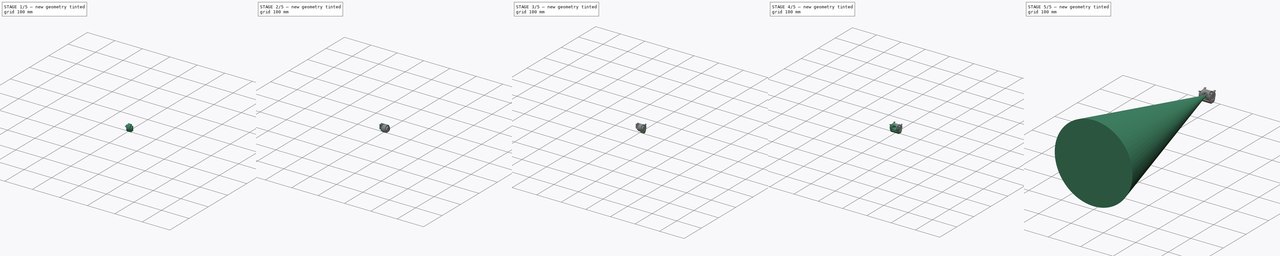
[diagram: build sequence overview — one tinted view per stage of 5, left to right]
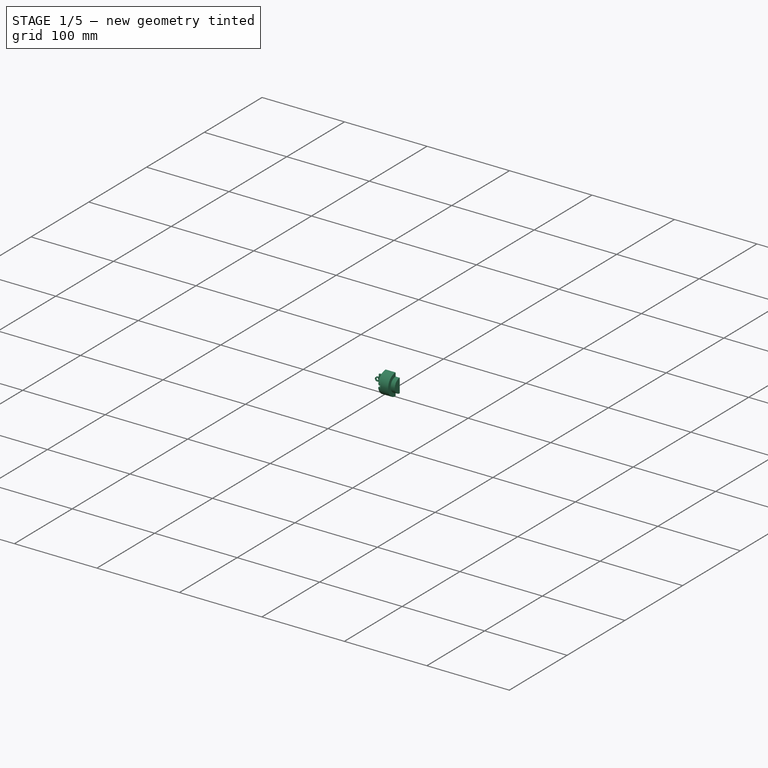
[diagram: stage 1 of 5 — iso view after this stage's code; geometry added in this stage tinted green]
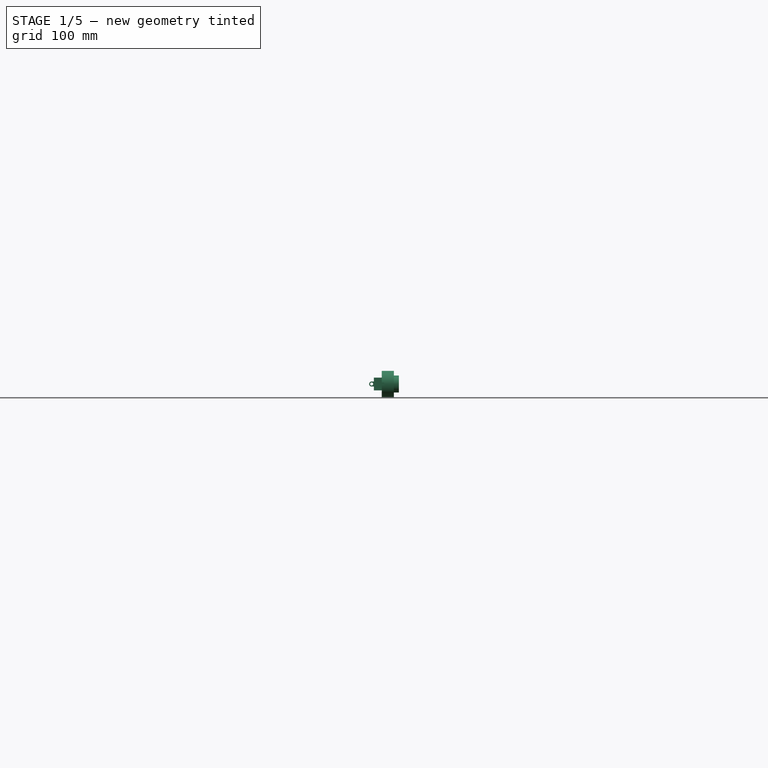
[diagram: stage 1 of 5 — front view after this stage's code; geometry added in this stage tinted green]
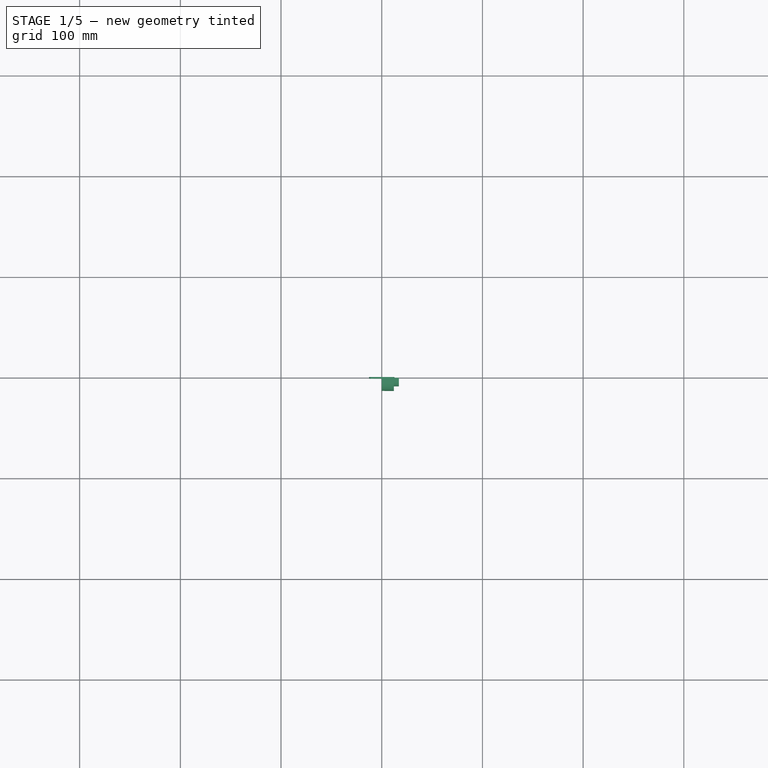
[diagram: stage 1 of 5 — top view after this stage's code; geometry added in this stage tinted green]
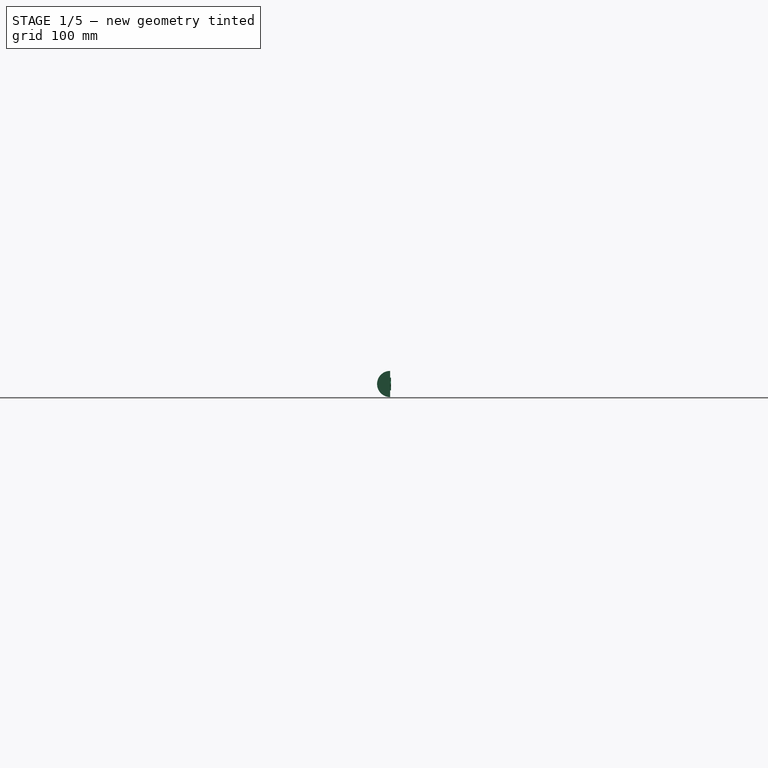
[diagram: stage 1 of 5 — right view after this stage's code; geometry added in this stage tinted green]
FCSTD DOCUMENT  (FreeCAD 1.1R20260414 (Git shallow))
Label: VL53L1XV2
License: All rights reserved
LicenseURL: http://en.wikipedia.org/wiki/All_rights_reserved
objects: Sketcher::SketchObject×23, PartDesign::Pocket×11, App::Point×10, PartDesign::Mirrored×9, PartDesign::Pad×7, PartDesign::Body×6, PartDesign::MultiTransform×6, App::Part×4, PartDesign::Fillet×3, PartDesign::Revolution×2, App::Link×2, Part::Part2DObjectPython×2, Part::Extrusion×2, PartDesign::PolarPattern×2, Part::Feature×1, App::VarSet×1, PartDesign::Groove×1, Part::RuledSurface×1
note: 164 computed .brp shape members not serialized (recipe doc carries the construction recipe); baked Part::Feature solids carry a one-line shape summary decoded from their .brp

FEATURE [PartDesign::Body] Body  label="FoV"
  AllowCompound = false
  Group = -> [Sketch,Revolution]
  Origin = -> Origin001
  Placement = pos=(0,-2.2,-2) rot=(0,0,1;0rad)
  Tip = -> Revolution
FEATURE [App::Part] Part001  label="support_VL53L1XV2"
  Origin = -> Origin002
FEATURE [App::Link] Link  label="VL53L1XV003"
  LinkPlacement = pos=(2e-16,0,-2) rot=(0,1,0;3.14159rad)
  LinkedObject = -> Part
  Placement = pos=(2e-16,0,-2) rot=(0,1,0;3.14159rad)
FEATURE [App::Point] Origin003  label="Origine"
  Role = Origin
FEATURE [App::Point] Origin004  label="Origine"
  Role = Origin
FEATURE [App::Point] Origin005  label="Origine"
  Role = Origin
FEATURE [Part::Part2DObjectPython] Line  # Draft 2D object (typed FeaturePython)
  Area = 0
  ChamferSize = 0
  Closed = false
  End = (-31,-3.82,-18)
  FilletRadius = 0
  Length = 63
  MakeFace = true
  Placement = pos=(30.6949,-3.33905,3e-15) rot=(0.707107,0.707107,0;3.14159rad)
  Points = (2) [(-0.480949,1.30514,18),(-0.480949,-61.6949,18)]
  Start = (32,-3.82,-18)
  Subdivisions = 0
FEATURE [Part::Extrusion] Extrude
  Base = -> Line
  Dir = (0,0,1)
  DirMode = 0
  FaceMakerClass = Part::FaceMakerBullseye
  FaceMakerMode = 3
  InnerWireTaper = 1
  LengthFwd = 40
  LengthRev = 0
  Solid = false
  Symmetric = false
FEATURE [App::Link] Link002  label="anneau001"
  LinkPlacement = pos=(-12,7.62876e-07,0) rot=(0,0,1;3.14159rad)
  LinkedObject = -> Body006
  Placement = pos=(-12,7.62876e-07,0) rot=(0,0,1;3.14159rad)
  expr: .Placement.Base.x = -(VarSet.largeur_base / 2 - 5 mm)
FEATURE [PartDesign::Mirrored] Mirrored
  MirrorPlane = -> YZ_Plane007
  Placement = pos=(0,0,0) rot=(1,1,1;2.0944rad)
  Suppressed = false
  TransformMode = 0
FEATURE [PartDesign::Mirrored] Mirrored003
  MirrorPlane = -> YZ_Plane011
  Placement = pos=(0,0,0) rot=(1,1,1;2.0944rad)
  Suppressed = false
  TransformMode = 0
FEATURE [PartDesign::Mirrored] Mirrored004
  MirrorPlane = -> YZ_Plane007
  Placement = pos=(0,0,0) rot=(1,1,1;2.0944rad)
  Suppressed = false
  TransformMode = 0
FEATURE [PartDesign::Mirrored] Mirrored005
  MirrorPlane = -> YZ_Plane009
  Placement = pos=(0,0,0) rot=(1,0,0;1.5708rad)
  Suppressed = false
  TransformMode = 0
FEATURE [App::Point] Origin020  label="Origine005"
  Role = Origin
FEATURE [App::Point] Origin021  label="Origine006"
  Role = Origin
FEATURE [App::Point] Origin022  label="Origine007"
  Role = Origin
FEATURE [App::Point] Origin023  label="Origine008"
  Role = Origin
FEATURE [App::Point] Origin024  label="Origine009"
  Role = Origin
FEATURE [App::Point] Origin025  label="Origine010"
  Role = Origin
FEATURE [PartDesign::PolarPattern] PolarPattern
  Angle = 180
  Axis = -> X_Axis007
  Mode = 0
  Occurrences = 13
  Offset = 120
  Placement = pos=(0,0,0) rot=(1,1,1;2.0944rad)
  SpacingPattern = [0]
  Spacings = [-1,-1,-1,-1,-1,-1,-1,-1,-1,-1,-1,-1]
  Suppressed = false
  TransformMode = 0
FEATURE [Sketcher::SketchObject] Sketch005
  ArcFitTolerance = 0
  AttachmentSupport = -> [YZ_Plane007]
  ExternalTypes = [0]
  FullyConstrained = true
  MakeInternals = false
  MapMode = 5
  Placement = pos=(0,0,0) rot=(0.57735,0.57735,0.57735;2.0944rad)
  _ExternalGeoVersion = 0
  sketch-geometry (2):
    g0: ArcOfCircle CenterX=0 CenterY=0 CenterZ=0 NormalX=0 NormalY=0 NormalZ=1 AngleXU=0 Radius=13 StartAngle=1.5708 EndAngle=4.71239
    g1: LineSegment StartX=-2.4e-15 StartY=13 StartZ=0 EndX=-2.4e-15 EndY=-13 EndZ=0
  constraints (6):
    c: Diameter(g0) = 26
    c: Coincident(g0,g1)
    c: PointOnObject(g0,g-2)
    c: Vertical(g1)
    c: Coincident(g1,g0)
    c: Coincident(g0,g-1)
FEATURE [PartDesign::Pad] Pad002
  Direction = (1,0,0)
  Length = 12
  Length2 = 10
  Placement = pos=(0,0,0) rot=(1,1,1;2.0944rad)
  Profile = -> Sketch005
  ReferenceAxis = -> Sketch005 [N_Axis]
  SideType = 0
  Suppressed = false
  Type = 0
  Type2 = 0
  expr: Length = VarSet.largeur_base / 2 - 5 mm
FEATURE [Sketcher::SketchObject] Sketch006
  ArcFitTolerance = 0
  AttachmentOffset = pos=(0,0,12) rot=(0,0,1;0rad)
  AttachmentSupport = -> [YZ_Plane007]
  ExternalTypes = [0]
  FullyConstrained = true
  MakeInternals = false
  MapMode = 5
  Placement = pos=(12,0,0) rot=(0.57735,0.57735,0.57735;2.0944rad)
  _ExternalGeoVersion = 0
  expr: .AttachmentOffset.Base.z = <<Pad002>>.Length
  sketch-geometry (2):
    g0: ArcOfCircle CenterX=0 CenterY=0 CenterZ=0 NormalX=0 NormalY=0 NormalZ=1 AngleXU=0 Radius=8.5 StartAngle=1.5708 EndAngle=4.71239
    g1: LineSegment StartX=2.09785e-11 StartY=8.5 StartZ=0 EndX=2.09785e-11 EndY=-8.5 EndZ=0
  constraints (6):
    c: Coincident(g0,g-1)
    c: Vertical(g1)
    c: Coincident(g0,g1)
    c: Coincident(g0,g1)
    c: PointOnObject(g0,g-2)
    c: Diameter(g0) = 17
FEATURE [PartDesign::Pad] Pad003
  BaseFeature = -> Pad002
  Direction = (1,0,0)
  Length = 5
  Length2 = 10
  Placement = pos=(0,0,0) rot=(1,1,1;2.0944rad)
  Profile = -> Sketch006
  ReferenceAxis = -> Sketch006 [N_Axis]
  SideType = 0
  Suppressed = false
  Type = 0
  Type2 = 0
FEATURE [Sketcher::SketchObject] Sketch007
  ArcFitTolerance = 0
  AttachmentSupport = -> [XZ_Plane007]
  ExternalTypes = [0]
  FullyConstrained = true
  MakeInternals = false
  MapMode = 5
  Placement = pos=(0,0,0) rot=(0,0.707107,0.707107;3.14159rad)
  _ExternalGeoVersion = 0
  sketch-geometry (11):
    g0: LineSegment StartX=-8 StartY=4.4 StartZ=0 EndX=0 EndY=4.4 EndZ=0
    g1: LineSegment StartX=0 StartY=4.4 StartZ=0 EndX=0 EndY=-8.4 EndZ=0
    g2: LineSegment StartX=0 StartY=-8.4 StartZ=0 EndX=-8 EndY=-8.4 EndZ=0
    g3: LineSegment StartX=-12.65 StartY=-3.75 StartZ=0 EndX=-12.65 EndY=-0.25 EndZ=0
    g4: GeomPoint X=-12.65 Y=-2 Z=0
    g5: ArcOfCircle [constr] CenterX=-8 CenterY=-0.25 CenterZ=0 NormalX=0 NormalY=0 NormalZ=1 AngleXU=0 Radius=4.65 StartAngle=1.5708 EndAngle=3.14159
    g6: GeomPoint [constr] X=-12.65 Y=4.4 Z=0
    g7: LineSegment StartX=-8 StartY=4.4 StartZ=0 EndX=-12.65 EndY=-0.25 EndZ=0
    g8: ArcOfCircle [constr] CenterX=-8 CenterY=-3.75 CenterZ=0 NormalX=0 NormalY=0 NormalZ=1 AngleXU=0 Radius=4.65 StartAngle=3.14159 EndAngle=4.71239
    g9: GeomPoint [constr] X=-12.65 Y=-8.4 Z=0
    g10: LineSegment StartX=-12.65 StartY=-3.75 StartZ=0 EndX=-8 EndY=-8.4 EndZ=0
  constraints (25):
    c: Coincident(g0,g1)
    c: Coincident(g1,g2)
    c: Horizontal(g0)
    c: Horizontal(g2)
    c: Vertical(g1)
    c: Vertical(g3)
    c: DistanceX(g6,g0) = 12.65
    c: Symmetric(g9,g6,g4)
    c: DistanceY(g4,g-1) = 2
    c: DistanceY(g1,g1) = 12.8
    c: PointOnObject(g0,g-2)
    c: PointOnObject(g6,g0)
    c: PointOnObject(g6,g3)
    c: Tangent(g0,g5) = 1.5708
    c: Tangent(g3,g5) = 1.5708
    c: Coincident(g7,g0)
    c: Coincident(g7,g3)
    c: PointOnObject(g9,g3)
    c: PointOnObject(g9,g2)
    c: Tangent(g3,g8) = 1.5708
    c: Tangent(g2,g8) = 1.5708
    c: Coincident(g10,g3)
    c: Coincident(g10,g2)
    c: Equal(g10,g7)
    c: DistanceY(g3,g3) = 3.5
FEATURE [PartDesign::Pocket] Pocket001  label="logement_pcb"
  BaseFeature = -> Pad003
  Direction = (0,-1,2e-16)
  Length = 1.3
  Length2 = 5
  Placement = pos=(0,0,0) rot=(1,1,1;2.0944rad)
  Profile = -> Sketch007
  ReferenceAxis = -> Sketch007 [N_Axis]
  SideType = 0
  Suppressed = false
  Type = 0
  Type2 = 0
FEATURE [Sketcher::SketchObject] Sketch008
  ArcFitTolerance = 0
  AttachmentSupport = -> [XZ_Plane007]
  ExternalTypes = [0]
  FullyConstrained = true
  MakeInternals = false
  MapMode = 5
  Placement = pos=(0,0,0) rot=(1,0,0;1.5708rad)
  _ExternalGeoVersion = 0
  sketch-geometry (4):
    g0: LineSegment StartX=-2.5 StartY=1.5 StartZ=0 EndX=-2.5 EndY=-1.5 EndZ=0
    g1: LineSegment StartX=-2.5 StartY=-1.5 StartZ=0 EndX=2.5 EndY=-1.5 EndZ=0
    g2: LineSegment StartX=2.5 StartY=-1.5 StartZ=0 EndX=2.5 EndY=1.5 EndZ=0
    g3: LineSegment StartX=2.5 StartY=1.5 StartZ=0 EndX=-2.5 EndY=1.5 EndZ=0
  constraints (11):
    c: Coincident(g0,g1)
    c: Coincident(g1,g2)
    c: Coincident(g2,g3)
    c: Coincident(g3,g0)
    c: Vertical(g0)
    c: Vertical(g2)
    c: Horizontal(g1)
    c: Horizontal(g3)
    c: Symmetric(g2,g0,g-1)
    c: DistanceX(g3,g3) = 5
    c: DistanceY(g0,g0) = 3
FEATURE [PartDesign::Pocket] Pocket002
  BaseFeature = -> Pocket001
  Direction = (0,1,-2e-16)
  Length = 5
  Length2 = 5
  Placement = pos=(0,0,0) rot=(1,1,1;2.0944rad)
  Profile = -> Sketch008
  ReferenceAxis = -> Sketch008 [N_Axis]
  Reversed = true
  SideType = 0
  Suppressed = false
  Type = 1
  Type2 = 0
FEATURE [PartDesign::Body] Body004  label="avant"
  AllowCompound = false
  Group = -> [Sketch005,Pad002,Sketch006,Pad003,Sketch007,Pocket001,Sketch008,Pocket002,Sketch010,Pocket004,Sketch025,Pad,MultiTransform,Mirrored,Sketch019,Groove,Fillet004,Sketch020,Pocket008,MultiTransform003,PolarPattern,Mirrored004]
  Origin = -> Origin010
  Tip = -> MultiTransform003
FEATURE [App::Part] Part004  label="partie_mobile"
  Group = -> [Body004,Body005,Body006,Link002,Line,Extrude]
  Origin = -> Origin015
FEATURE [App::Part] Part003  label="support_2_axes_VL53L1XV2"
  Group = -> [Body007,Part004,Link]
  Origin = -> Origin011
  Placement = pos=(0,-4e-16,-2) rot=(0,1,0;3.14159rad)
FEATURE [Part::Part2DObjectPython] Line001  label="Line002"  # Draft 2D object (typed FeaturePython)
  Area = 0
  ChamferSize = 0
  Closed = false
  End = (-31,-3.95,-18)
  FilletRadius = 0
  Length = 63
  MakeFace = true
  Placement = pos=(30.6949,-3.33905,3e-15) rot=(0.707107,0.707107,0;3.14159rad)
  Points = (2) [(-0.610949,1.30514,18),(-0.610949,-61.6949,18)]
  Start = (32,-3.95,-18)
  Subdivisions = 0
FEATURE [Part::Extrusion] Extrude001
  Base = -> Line001
  Dir = (0,0,1)
  DirMode = 0
  FaceMakerClass = Part::FaceMakerBullseye
  FaceMakerMode = 3
  InnerWireTaper = 1
  LengthFwd = 40
  LengthRev = 0
  Solid = false
  Symmetric = false
FEATURE [Sketcher::SketchObject] Sketch036
  ArcFitTolerance = 0
  ExternalTypes = [0]
  FullyConstrained = false
  MakeInternals = false
  MapMode = 5
  Placement = pos=(0,5,-1.3e-15) rot=(1,0,0;1.5708rad)
  _ExternalGeoVersion = 0
  sketch-geometry (4):
    g0: LineSegment StartX=-26.1721 StartY=24.1328 StartZ=0 EndX=26.3282 EndY=24.1328 EndZ=0
    g1: LineSegment StartX=26.3282 StartY=24.1328 StartZ=0 EndX=26.3282 EndY=-22.5468 EndZ=0
    g2: LineSegment StartX=26.3282 StartY=-22.5468 StartZ=0 EndX=-26.1721 EndY=-22.5468 EndZ=0
    g3: LineSegment StartX=-26.1721 StartY=-22.5468 StartZ=0 EndX=-26.1721 EndY=24.1328 EndZ=0
  constraints (8):
    c: Coincident(g0,g1)
    c: Coincident(g1,g2)
    c: Coincident(g2,g3)
    c: Coincident(g3,g0)
    c: Horizontal(g0)
    c: Horizontal(g2)
    c: Vertical(g1)
    c: Vertical(g3)
FEATURE [Part::RuledSurface] Ruled_Surface
  Curve1 = -> Sketch036 [Edge3]
  Curve2 = -> Sketch036 [Edge1]
  Orientation = 0
FEATURE [App::Point] Origin027  label="Origine011"
  Role = Origin
FEATURE [Sketcher::SketchObject] Sketch037
  ArcFitTolerance = 1e-06
  AttachmentSupport = -> [Origin026]
  ExternalTypes = [0]
  FullyConstrained = true
  MakeInternals = false
  MapMode = 5
  _ExternalGeoVersion = 1
FEATURE [Sketcher::SketchObject] Sketch038
  ArcFitTolerance = 1e-06
  AttachmentSupport = -> [Origin026]
  ExternalTypes = [0]
  FullyConstrained = true
  MakeInternals = false
  MapMode = 5
  Placement = pos=(0,0,0) rot=(1,0,0;1.5708rad)
  _ExternalGeoVersion = 1
  expr: Constraints[12] = 25 / 2
  expr: Constraints[13] = 12.6 / 2
  expr: Constraints[15] = 15.7 / 2
  sketch-geometry (8):
    g0: LineSegment StartX=0 StartY=6.3 StartZ=0 EndX=0 EndY=0 EndZ=0
    g1: LineSegment StartX=0 StartY=0 StartZ=0 EndX=-8.5 EndY=0 EndZ=0
    g2: ArcOfCircle CenterX=-10 CenterY=-2e-16 CenterZ=0 NormalX=0 NormalY=0 NormalZ=1 AngleXU=0 Radius=2.5 StartAngle=1.5708 EndAngle=3.14159
    g3: LineSegment StartX=-10 StartY=2.5 StartZ=0 EndX=-7.85 EndY=2.5 EndZ=0
    g4: LineSegment StartX=-7.85 StartY=2.5 StartZ=0 EndX=-7.85 EndY=6.3 EndZ=0
    g5: LineSegment StartX=-7.85 StartY=6.3 StartZ=0 EndX=0 EndY=6.3 EndZ=0
    g6: ArcOfCircle CenterX=-10 CenterY=-2e-16 CenterZ=0 NormalX=0 NormalY=0 NormalZ=1 AngleXU=0 Radius=1.5 StartAngle=1e-16 EndAngle=3.14159
    g7: LineSegment StartX=-11.5 StartY=0 StartZ=0 EndX=-12.5 EndY=0 EndZ=0
  constraints (22):
    c: PointOnObject(g0,g-2)
    c: Coincident(g0,g-1)
    c: Coincident(g0,g1)
    c: PointOnObject(g7,g-1)
    c: Perpendicular(g7,g2) = 1.5708
    c: Tangent(g2,g3) = 1.5708
    c: Coincident(g3,g4)
    c: Vertical(g4)
    c: Coincident(g4,g5)
    c: Coincident(g5,g0)
    c: Horizontal(g5)
    c: DistanceX(g2,g-1) = 10
    c: DistanceX(g7,g1) = 12.5
    c: DistanceY(g0,g0) = 6.3
    c: Horizontal(g3)
    c: DistanceX(g5,g5) = 7.85
    c: Coincident(g6,g2)
    c: Coincident(g6,g7)
    c: Coincident(g6,g1)
    c: Horizontal(g7)
    c: Horizontal(g1)
    c: Radius(g6) = 1.5
FEATURE [PartDesign::Pad] Pad007
  Direction = (0,-1,2e-16)
  Length = 1.6
  Length2 = 10
  Profile = -> Sketch038
  ReferenceAxis = -> Sketch038 [N_Axis]
  SideType = 2
  Suppressed = false
  Type = 0
  Type2 = 0
FEATURE [PartDesign::Mirrored] Mirror
  MirrorPlane = -> Sketch038 [V_Axis]
  Suppressed = false
  TransformMode = 0
FEATURE [PartDesign::Mirrored] Mirror001
  MirrorPlane = -> Sketch038 [H_Axis]
  Suppressed = false
  TransformMode = 0
FEATURE [PartDesign::MultiTransform] MultiTransform005
  BaseFeature = -> Pad007
  Originals = -> [Pad007]
  Suppressed = false
  TransformMode = 0
  Transformations = -> [Mirror,Mirror001]
FEATURE [PartDesign::Body] Body008  label="CJ-VL53L0XV2"
  AllowCompound = false
  Group = -> [Sketch037,Sketch038,Pad007,MultiTransform005,Mirror,Mirror001]
  Origin = -> Origin026
  Tip = -> MultiTransform005
FEATURE [App::Part] Part  label="VL53L1XV2"
  Group = -> [Part__Feature,Body,Body008]
  Origin = -> Origin
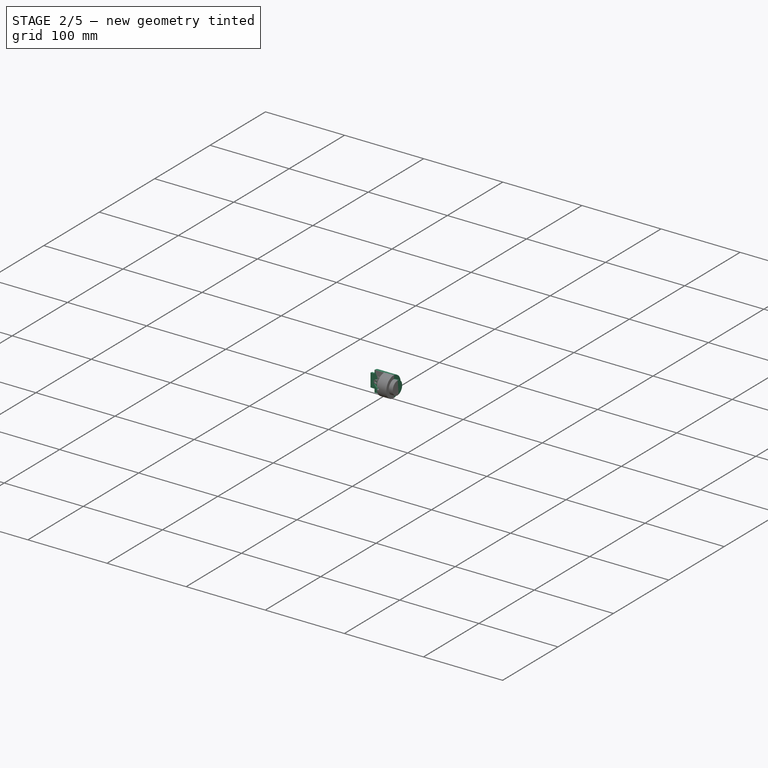
[diagram: stage 2 of 5 — iso view after this stage's code; geometry added in this stage tinted green]
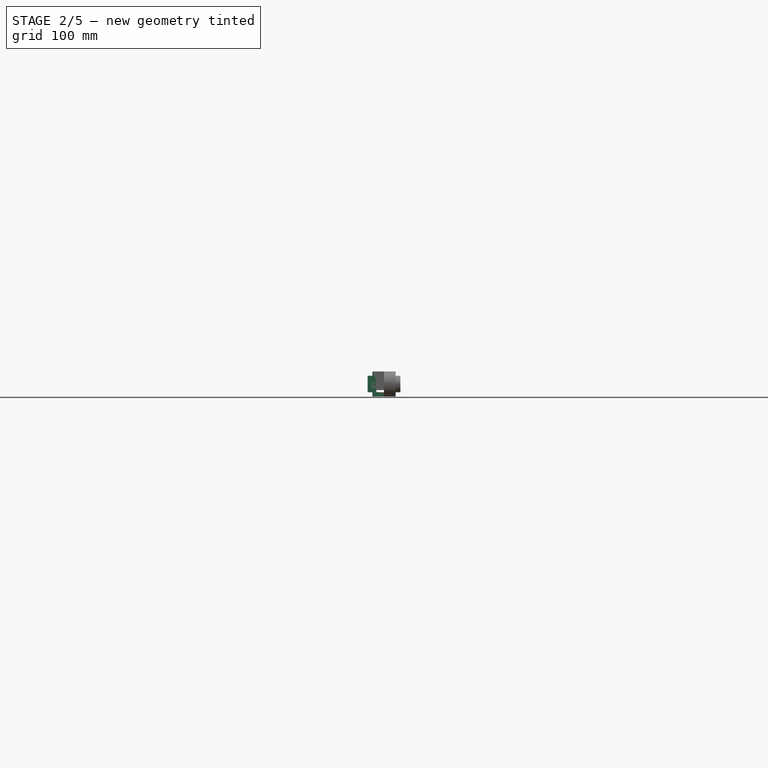
[diagram: stage 2 of 5 — front view after this stage's code; geometry added in this stage tinted green]
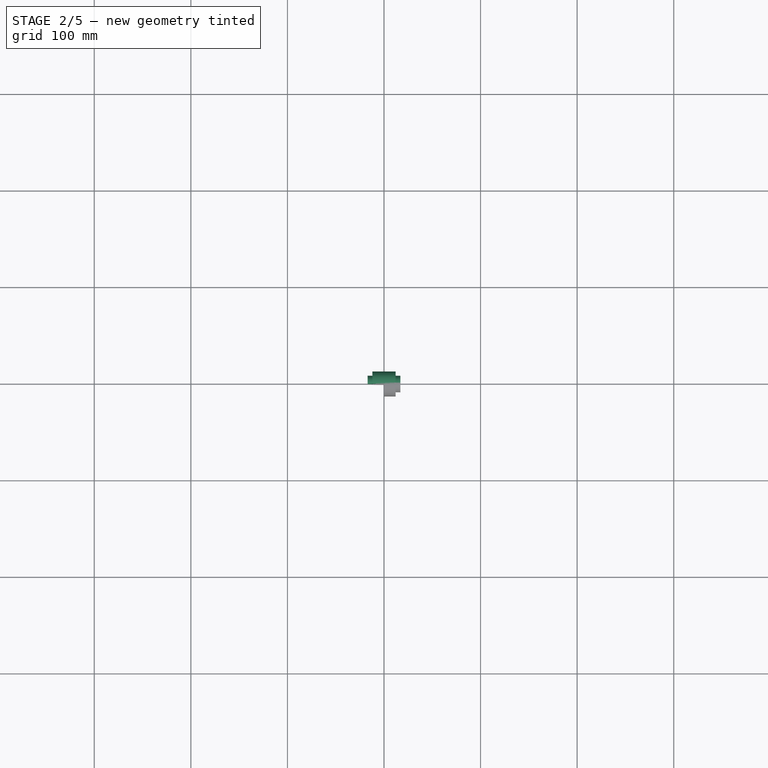
[diagram: stage 2 of 5 — top view after this stage's code; geometry added in this stage tinted green]
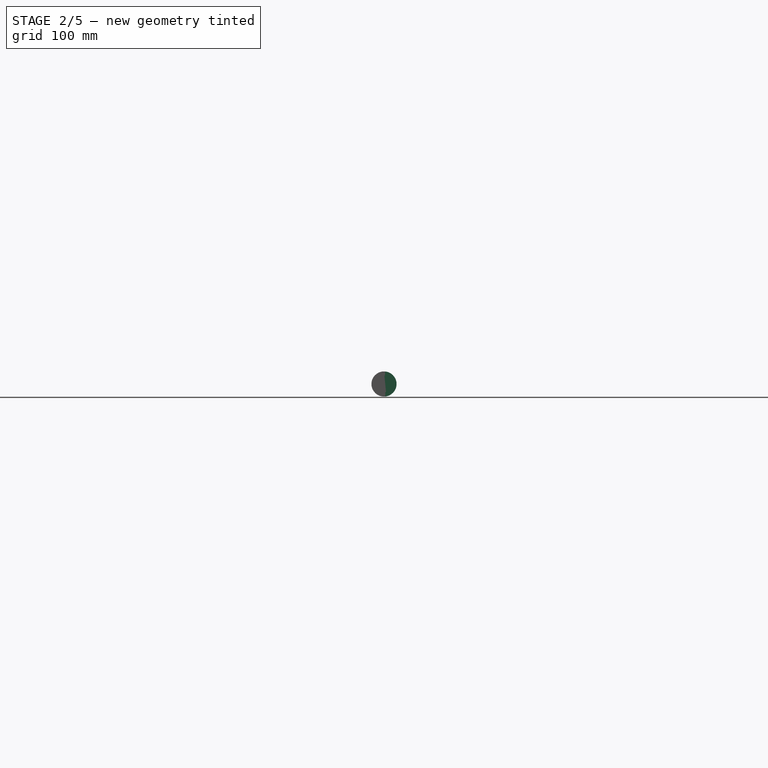
[diagram: stage 2 of 5 — right view after this stage's code; geometry added in this stage tinted green]
FEATURE [Sketcher::SketchObject] Sketch010
  ArcFitTolerance = 0
  AttachmentSupport = -> [YZ_Plane007]
  ExternalTypes = [0]
  FullyConstrained = true
  MakeInternals = false
  MapMode = 5
  Placement = pos=(0,0,0) rot=(0.57735,-0.57735,-0.57735;2.0944rad)
  _ExternalGeoVersion = 0
  sketch-geometry (2):
    g0: ArcOfCircle CenterX=1 CenterY=-5.75 CenterZ=0 NormalX=0 NormalY=0 NormalZ=1 AngleXU=0 Radius=2.25 StartAngle=4.71239 EndAngle=7.85398
    g1: LineSegment StartX=1 StartY=-3.5 StartZ=0 EndX=1 EndY=-8 EndZ=0
  constraints (7):
    c: Coincident(g1,g0)
    c: Coincident(g1,g0)
    c: Vertical(g1)
    c: Diameter(g0) = 4.5
    c: Vertical(g0,g0)
    c: DistanceX(g-1,g0) = 1
    c: DistanceY(g0,g-1) = 5.75
FEATURE [PartDesign::Pocket] Pocket004
  BaseFeature = -> Pocket002
  Direction = (1,0,0)
  Length = 8
  Length2 = 5
  Placement = pos=(0,0,0) rot=(1,1,1;2.0944rad)
  Profile = -> Sketch010
  ReferenceAxis = -> Sketch010 [N_Axis]
  SideType = 0
  Suppressed = false
  Type = 0
  Type2 = 0
FEATURE [Sketcher::SketchObject] Sketch011
  ArcFitTolerance = 0
  AttachmentSupport = -> [XZ_Plane009]
  ExternalTypes = [0]
  FullyConstrained = true
  MakeInternals = false
  MapMode = 5
  Placement = pos=(0,0,0) rot=(1,0,0;1.5708rad)
  _ExternalGeoVersion = 0
  expr: Constraints[9] = Pad002.Length
  sketch-geometry (6):
    g0: LineSegment StartX=0 StartY=13 StartZ=0 EndX=12 EndY=13 EndZ=0
    g1: LineSegment StartX=0 StartY=0 StartZ=0 EndX=0 EndY=13 EndZ=0
    g2: LineSegment StartX=17 StartY=0 StartZ=0 EndX=17 EndY=8.5 EndZ=0
    g3: LineSegment StartX=17 StartY=8.5 StartZ=0 EndX=12 EndY=8.5 EndZ=0
    g4: LineSegment StartX=12 StartY=13 StartZ=0 EndX=12 EndY=8.5 EndZ=0
    g5: LineSegment StartX=0 StartY=0 StartZ=0 EndX=17 EndY=0 EndZ=0
  constraints (17):
    c: Coincident(g1,g0)
    c: Horizontal(g0)
    c: PointOnObject(g0,g-2)
    c: Coincident(g2,g3)
    c: Horizontal(g3)
    c: Vertical(g2)
    c: Coincident(g4,g0)
    c: Coincident(g4,g3)
    c: Vertical(g4)
    c: DistanceX(g0,g0) = 12
    c: DistanceX(g3,g3) = 5
    c: DistanceY(g4,g4) = 4.5
    c: Coincident(g5,g-1)
    c: Horizontal(g5)
    c: Coincident(g2,g5)
    c: DistanceY(g1,g1) = 13
    c: Coincident(g1,g5)
FEATURE [PartDesign::Mirrored] Mirrored001
  MirrorPlane = -> Sketch011 [V_Axis]
  Placement = pos=(0,0,0) rot=(1,0,0;1.5708rad)
  Suppressed = false
  TransformMode = 0
FEATURE [PartDesign::Revolution] Revolution002
  Angle = 180
  Angle2 = 60
  Axis = (1,0,0)
  Base = (0,0,0)
  FuseOrder = 1
  Placement = pos=(0,0,0) rot=(1,0,0;1.5708rad)
  Profile = -> Sketch011
  ReferenceAxis = -> Sketch011 [H_Axis]
  Reversed = true
  Suppressed = false
  Type = 0
FEATURE [Sketcher::SketchObject] Sketch017
  ArcFitTolerance = 0
  AttachmentSupport = -> [XZ_Plane009]
  ExternalTypes = [0]
  FullyConstrained = true
  MakeInternals = false
  MapMode = 5
  Placement = pos=(0,0,0) rot=(0,0.707107,0.707107;3.14159rad)
  _ExternalGeoVersion = 0
  sketch-geometry (7):
    g0: LineSegment StartX=-7 StartY=-8.375 StartZ=0 EndX=0 EndY=-8.375 EndZ=0
    g1: LineSegment StartX=0 StartY=-8.375 StartZ=0 EndX=0 EndY=-4.625 EndZ=0
    g2: LineSegment StartX=-7 StartY=-4.625 StartZ=0 EndX=0 EndY=-4.625 EndZ=0
    g3: ArcOfCircle CenterX=-7 CenterY=-7.375 CenterZ=0 NormalX=0 NormalY=0 NormalZ=1 AngleXU=0 Radius=1 StartAngle=3.14159 EndAngle=4.71239
    g4: ArcOfCircle CenterX=-7 CenterY=-5.625 CenterZ=0 NormalX=0 NormalY=0 NormalZ=1 AngleXU=0 Radius=1 StartAngle=1.5708 EndAngle=3.14159
    g5: LineSegment StartX=-8 StartY=-7.375 StartZ=0 EndX=-8 EndY=-5.625 EndZ=0
    g6: GeomPoint X=0 Y=-6.5 Z=0
  constraints (17):
    c: Coincident(g0,g1)
    c: Horizontal(g0)
    c: Vertical(g1)
    c: PointOnObject(g1,g-2)
    c: Horizontal(g2)
    c: Coincident(g1,g2)
    c: Tangent(g0,g3) = -1.5708
    c: DistanceY(g1,g1) = 3.75
    c: Tangent(g4,g2) = 1.5708
    c: Tangent(g4,g5) = 1.5708
    c: Tangent(g5,g3) = 1.5708
    c: Vertical(g5)
    c: Equal(g4,g3)
    c: Diameter(g4) = 2
    c: Symmetric(g1,g1,g6)
    c: DistanceY(g6,g-1) = 6.5
    c: DistanceX(g4,g-1) = 8
FEATURE [PartDesign::Pocket] Pocket007  label="passage_cable"
  BaseFeature = -> Revolution002
  Direction = (0,-1,2e-16)
  Length = 5
  Length2 = 5
  Placement = pos=(0,0,0) rot=(1,0,0;1.5708rad)
  Profile = -> Sketch017
  ReferenceAxis = -> Sketch017 [N_Axis]
  Reversed = true
  SideType = 0
  Suppressed = false
  Type = 1
  Type2 = 0
FEATURE [PartDesign::Body] Body007  label="base"
  AllowCompound = false
  Group = -> [Sketch013,Pad005,Sketch014,Pad006,Sketch015,Pocket005,Sketch016,Pocket006,MultiTransform002,Mirrored002,Mirrored003,Sketch023,Pocket011,Mirrored006]
  Origin = -> Origin014
  Tip = -> Mirrored006
FEATURE [App::VarSet] VarSet
  largeur_base = 34
FEATURE [Sketcher::SketchObject] Sketch024
  ArcFitTolerance = 1e-06
  AttachmentSupport = -> [Origin012]
  ExternalTypes = [0]
  FullyConstrained = true
  MakeInternals = false
  MapMode = 5
  Placement = pos=(0,0,0) rot=(1,0,0;1.5708rad)
  _ExternalGeoVersion = 1
  sketch-geometry (11):
    g0: LineSegment StartX=8 StartY=4.4 StartZ=0 EndX=0 EndY=4.4 EndZ=0
    g1: LineSegment StartX=0 StartY=4.4 StartZ=0 EndX=0 EndY=-8.4 EndZ=0
    g2: LineSegment StartX=0 StartY=-8.4 StartZ=0 EndX=8 EndY=-8.4 EndZ=0
    g3: LineSegment StartX=12.65 StartY=-3.75 StartZ=0 EndX=12.65 EndY=-0.25 EndZ=0
    g4: GeomPoint X=0 Y=-2 Z=0
    g5: ArcOfCircle [constr] CenterX=8 CenterY=-0.25 CenterZ=0 NormalX=0 NormalY=0 NormalZ=1 AngleXU=0 Radius=4.65 StartAngle=-8e-15 EndAngle=1.5708
    g6: GeomPoint [constr] X=12.65 Y=4.4 Z=0
    g7: LineSegment StartX=12.65 StartY=-0.25 StartZ=0 EndX=8 EndY=4.4 EndZ=0
    g8: ArcOfCircle [constr] CenterX=8 CenterY=-3.75 CenterZ=0 NormalX=0 NormalY=0 NormalZ=1 AngleXU=0 Radius=4.65 StartAngle=4.71239 EndAngle=6.28319
    g9: GeomPoint [constr] X=12.65 Y=-8.4 Z=0
    g10: LineSegment StartX=8 StartY=-8.4 StartZ=0 EndX=12.65 EndY=-3.75 EndZ=0
  constraints (25):
    c: Coincident(g0,g1)
    c: Coincident(g1,g2)
    c: Horizontal(g0)
    c: Horizontal(g2)
    c: Vertical(g1)
    c: Vertical(g3)
    c: DistanceX(g0,g6) = 12.65
    c: PointOnObject(g0,g-2)
    c: Symmetric(g1,g1,g4)
    c: DistanceY(g4,g-1) = 2
    c: DistanceY(g1,g1) = 12.8
    c: PointOnObject(g6,g0)
    c: PointOnObject(g6,g3)
    c: Tangent(g0,g5) = -1.5708
    c: Tangent(g3,g5) = -1.5708
    c: Coincident(g7,g0)
    c: Coincident(g7,g3)
    c: PointOnObject(g9,g3)
    c: PointOnObject(g9,g2)
    c: Tangent(g3,g8) = -1.5708
    c: Tangent(g2,g8) = -1.5708
    c: Coincident(g10,g3)
    c: Coincident(g10,g2)
    c: Equal(g10,g7)
    c: DistanceY(g3,g3) = 3.5
FEATURE [PartDesign::Pocket] Pocket  label="logement_pcb001"
  BaseFeature = -> Pocket007
  Direction = (0,1,-2e-16)
  Length = 1.8
  Length2 = 5
  Placement = pos=(0,0,0) rot=(1,0,0;1.5708rad)
  Profile = -> Sketch024
  ReferenceAxis = -> Sketch024 [N_Axis]
  SideType = 0
  Suppressed = false
  Type = 0
  Type2 = 0
FEATURE [PartDesign::MultiTransform] MultiTransform001
  BaseFeature = -> Pocket
  Originals = -> [Revolution002,Pocket007,Pocket]
  Placement = pos=(0,0,0) rot=(1,0,0;1.5708rad)
  Refine = true
  Suppressed = false
  TransformMode = 0
  Transformations = -> [Mirrored001]
FEATURE [PartDesign::Body] Body005  label="arriere"
  AllowCompound = false
  Group = -> [Sketch011,Revolution002,Sketch017,Pocket007,Sketch024,Pocket,MultiTransform001,Mirrored001,Sketch021,Pocket009,Sketch022,Pocket010,MultiTransform004,PolarPattern001,Mirrored005,Fillet005]
  Origin = -> Origin012
  Tip = -> Fillet005
FEATURE [Sketcher::SketchObject] Sketch025
  ArcFitTolerance = 1e-06
  AttachmentSupport = -> [Pocket004]
  ExternalTypes = [0]
  FullyConstrained = true
  MakeInternals = false
  MapMode = 5
  Placement = pos=(0,-1.3,0) rot=(0.57735,0.57735,0.57735;4.18879rad)
  _ExternalGeoVersion = 1
  sketch-geometry (1):
    g0: Circle CenterX=-2 CenterY=10 CenterZ=0 NormalX=0 NormalY=0 NormalZ=1 AngleXU=0 Radius=1.375
  constraints (3):
    c: DistanceY(g-1,g0) = 10
    c: DistanceX(g0,g-1) = 2
    c: Diameter(g0) = 2.75
FEATURE [PartDesign::Pad] Pad
  BaseFeature = -> Pocket004
  Direction = (0,1,0)
  Length = 1.3
  Length2 = 10
  Placement = pos=(0,0,0) rot=(1,1,1;2.0944rad)
  Profile = -> Sketch025
  ReferenceAxis = -> Sketch025 [N_Axis]
  SideType = 0
  Suppressed = false
  Type = 0
  Type2 = 0
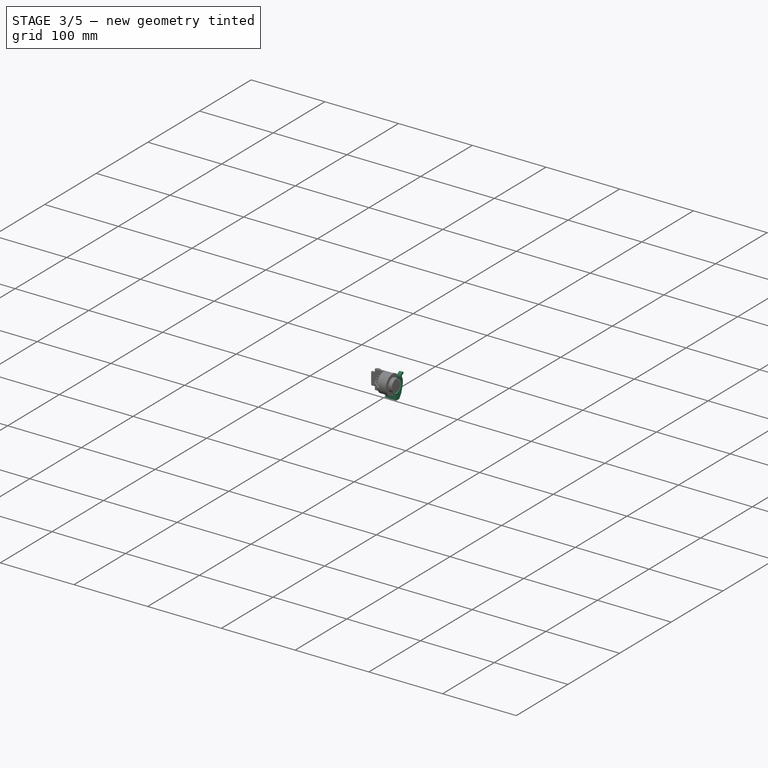
[diagram: stage 3 of 5 — iso view after this stage's code; geometry added in this stage tinted green]
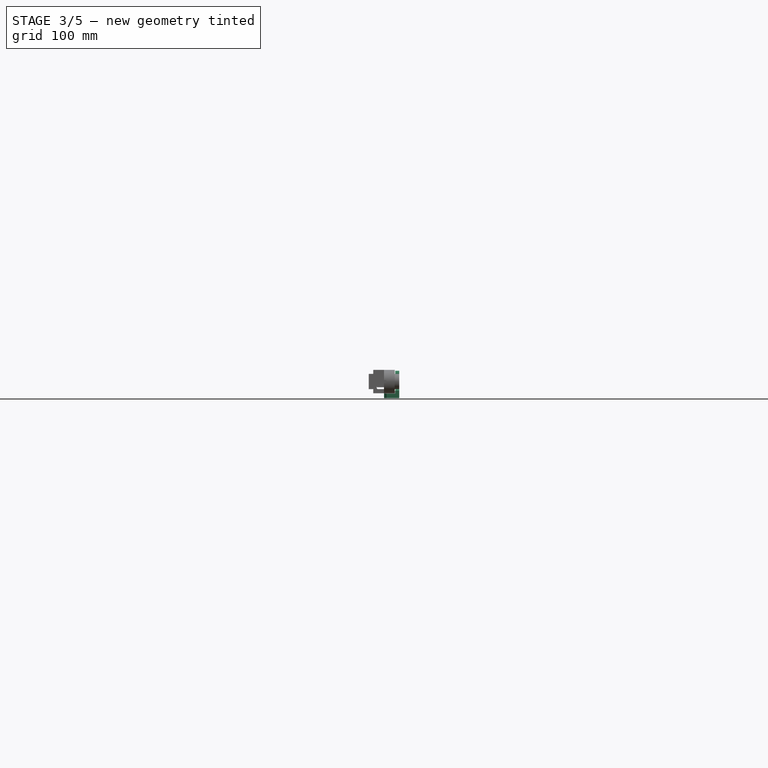
[diagram: stage 3 of 5 — front view after this stage's code; geometry added in this stage tinted green]
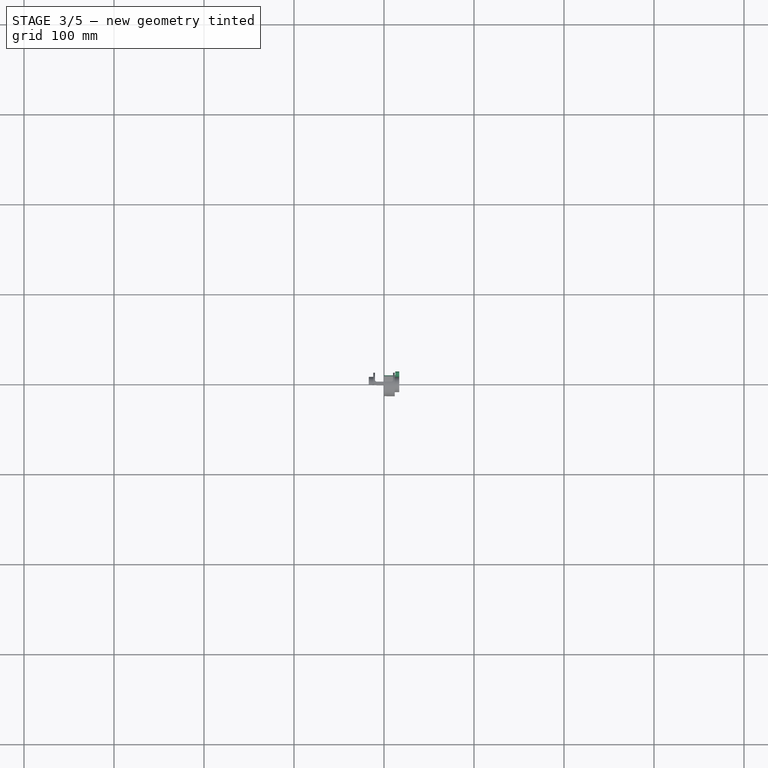
[diagram: stage 3 of 5 — top view after this stage's code; geometry added in this stage tinted green]
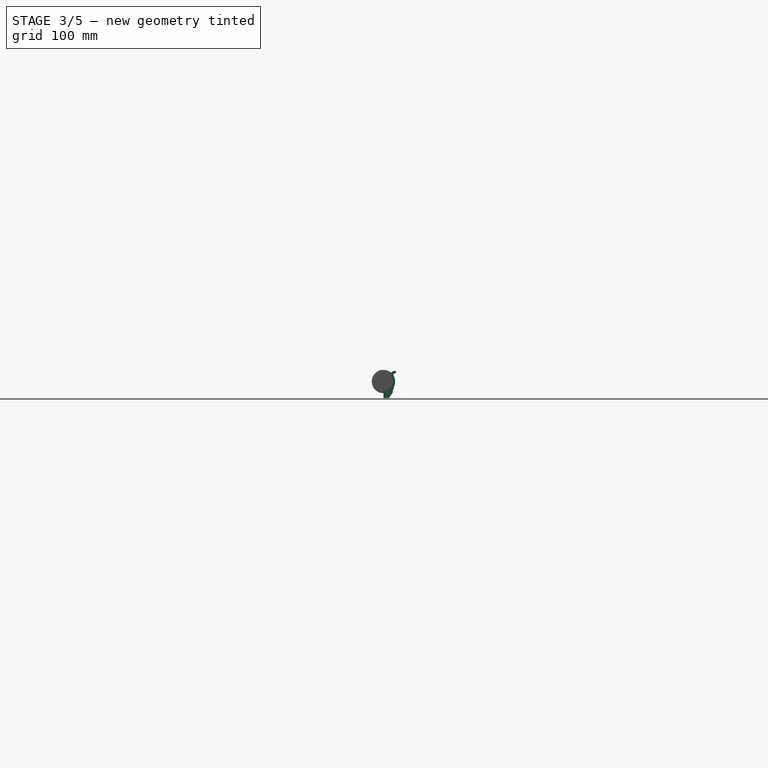
[diagram: stage 3 of 5 — right view after this stage's code; geometry added in this stage tinted green]
FEATURE [PartDesign::Body] Body006  label="anneau"
  AllowCompound = false
  Group = -> [Sketch012,Pad004,Fillet001]
  Origin = -> Origin013
  Placement = pos=(12,0,0) rot=(0,0,1;0rad)
  Tip = -> Fillet001
  expr: .Placement.Base.x = VarSet.largeur_base / 2 - 5 mm
FEATURE [Sketcher::SketchObject] Sketch013
  ArcFitTolerance = 0
  AttachmentSupport = -> [YZ_Plane011]
  ExternalTypes = [0]
  FullyConstrained = true
  MakeInternals = false
  MapMode = 5
  Placement = pos=(0,0,0) rot=(0.57735,0.57735,0.57735;2.0944rad)
  _ExternalGeoVersion = 0
  sketch-geometry (5):
    g0: ArcOfCircle CenterX=0 CenterY=0 CenterZ=0 NormalX=0 NormalY=0 NormalZ=1 AngleXU=0 Radius=13.5 StartAngle=4.71239 EndAngle=5.36551
    g1: LineSegment StartX=6 StartY=-18.5 StartZ=0 EndX=10.0836 EndY=-12.5 EndZ=0
    g2: ArcOfCircle CenterX=9 CenterY=-11.7625 CenterZ=0 NormalX=0 NormalY=0 NormalZ=1 AngleXU=0 Radius=1.31071 StartAngle=5.6856 EndAngle=8.5071
    g3: LineSegment StartX=-2.5e-15 StartY=-13.5 StartZ=0 EndX=-2.5e-15 EndY=-18.5 EndZ=0
    g4: LineSegment StartX=-2.5e-15 StartY=-18.5 StartZ=0 EndX=6 EndY=-18.5 EndZ=0
  constraints (14):
    c: Coincident(g0,g-1)
    c: Tangent(g2,g1) = -1.5708
    c: Tangent(g2,g0) = 1.5708
    c: Diameter(g0) = 27
    c: DistanceY(g1,g1) = 6
    c: Coincident(g3,g0)
    c: PointOnObject(g3,g-2)
    c: Vertical(g3)
    c: Coincident(g4,g3)
    c: Coincident(g4,g1)
    c: DistanceY(g3,g3) = 5
    c: DistanceX(g4,g4) = 6
    c: Horizontal(g4)
    c: DistanceX(g3,g2) = 9
FEATURE [PartDesign::Mirrored] Mirrored002
  MirrorPlane = -> Sketch013 [V_Axis]
  Placement = pos=(0,0,0) rot=(1,1,1;2.0944rad)
  Suppressed = false
  TransformMode = 0
FEATURE [PartDesign::Pad] Pad005
  Direction = (1,0,0)
  Length = 17
  Length2 = 10
  Placement = pos=(0,0,0) rot=(1,1,1;2.0944rad)
  Profile = -> Sketch013
  ReferenceAxis = -> Sketch013 [N_Axis]
  SideType = 0
  Suppressed = false
  Type = 0
  Type2 = 0
  expr: Length = VarSet.largeur_base / 2
FEATURE [Sketcher::SketchObject] Sketch014
  ArcFitTolerance = 0
  AttachmentOffset = pos=(0,0,17) rot=(0,0,1;0rad)
  AttachmentSupport = -> [YZ_Plane011]
  ExternalTypes = [0]
  FullyConstrained = true
  MakeInternals = false
  MapMode = 5
  Placement = pos=(17,0,0) rot=(0.57735,0.57735,0.57735;2.0944rad)
  _ExternalGeoVersion = 0
  expr: .AttachmentOffset.Base.z = Pad005.Length
  sketch-geometry (11):
    g0: ArcOfCircle CenterX=0 CenterY=0 CenterZ=0 NormalX=0 NormalY=0 NormalZ=1 AngleXU=0 Radius=10.15 StartAngle=4.71239 EndAngle=6.80678
    g1: ArcOfCircle CenterX=0 CenterY=0 CenterZ=0 NormalX=0 NormalY=0 NormalZ=1 AngleXU=0 Radius=13 StartAngle=5.98938 EndAngle=6.80678
    g2: ArcOfCircle CenterX=12.7739 CenterY=7.375 CenterZ=0 NormalX=0 NormalY=0 NormalZ=1 AngleXU=0 Radius=4.6 StartAngle=1.5708 EndAngle=3.66519
    g3: ArcOfCircle CenterX=12.7739 CenterY=7.375 CenterZ=0 NormalX=0 NormalY=0 NormalZ=1 AngleXU=0 Radius=1.75 StartAngle=1.5708 EndAngle=3.66519
    g4: ArcOfCircle CenterX=12.7739 CenterY=10.55 CenterZ=0 NormalX=0 NormalY=0 NormalZ=1 AngleXU=0 Radius=1.425 StartAngle=4.71239 EndAngle=7.85398
    g5: LineSegment StartX=-1.9e-15 StartY=-10.15 StartZ=0 EndX=0 EndY=-14.15 EndZ=0
    g6: LineSegment StartX=12.4429 StartY=-3.76473 StartZ=0 EndX=9.8 EndY=-12.5 EndZ=0
    g7: LineSegment [constr] StartX=0 StartY=0 StartZ=0 EndX=11.2583 EndY=6.5 EndZ=0
    g8: LineSegment [constr] StartX=12.7739 StartY=11.975 StartZ=0 EndX=12.7739 EndY=9.125 EndZ=0
    g9: LineSegment [constr] StartX=8.79016 StartY=5.075 StartZ=0 EndX=11.2583 EndY=6.5 EndZ=0
    g10: LineSegment StartX=9.8 StartY=-12.5 StartZ=0 EndX=0 EndY=-14.15 EndZ=0
  constraints (28):
    c: Coincident(g0,g-1)
    c: Coincident(g1,g0)
    c: Tangent(g4,g2) = -1.5708
    c: Tangent(g2,g0) = 1.5708
    c: Tangent(g4,g3) = 1.5708
    c: Tangent(g3,g1) = 1.5708
    c: Diameter(g0) = 20.3
    c: Diameter(g1) = 26
    c: PointOnObject(g0,g-2)
    c: Coincident(g5,g0)
    c: PointOnObject(g5,g-2)
    c: Coincident(g7,g0)
    c: Coincident(g7,g1)
    c: PointOnObject(g0,g7)
    c: Coincident(g8,g2)
    c: Coincident(g8,g3)
    c: Coincident(g9,g0)
    c: Equal(g9,g8)
    c: Coincident(g9,g1)
    c: Angle(g-1,g7) = 0.523599
    c: Vertical(g8)
    c: Diameter(g3) = 3.5
    c: Tangent(g6,g1) = 1.5708
    c: Coincident(g10,g6)
    c: Coincident(g10,g5)
    c: DistanceY(g5,g5) = 4
    c: DistanceX(g6) = 9.8
    c: DistanceY(g6) = -12.5
FEATURE [PartDesign::Pad] Pad006
  BaseFeature = -> Pad005
  Direction = (1,0,0)
  Length = 4.5
  Length2 = 10
  Placement = pos=(0,0,0) rot=(1,1,1;2.0944rad)
  Profile = -> Sketch014
  ReferenceAxis = -> Sketch014 [N_Axis]
  Refine = true
  Reversed = true
  SideType = 0
  Suppressed = false
  Type = 0
  Type2 = 0
FEATURE [Sketcher::SketchObject] Sketch015
  ArcFitTolerance = 0
  AttachmentSupport = -> [XY_Plane011]
  ExternalTypes = [0]
  FullyConstrained = true
  MakeInternals = false
  MapMode = 5
  _ExternalGeoVersion = 0
  sketch-geometry (1):
    g0: Circle CenterX=0 CenterY=0 CenterZ=0 NormalX=0 NormalY=0 NormalZ=1 AngleXU=0 Radius=2.75
  constraints (2):
    c: Coincident(g0,g-1)
    c: Diameter(g0) = 5.5
FEATURE [PartDesign::Pocket] Pocket005
  BaseFeature = -> Pad006
  Direction = (0,0,-1)
  Length = 5
  Length2 = 5
  Placement = pos=(0,0,0) rot=(1,1,1;2.0944rad)
  Profile = -> Sketch015
  ReferenceAxis = -> Sketch015 [N_Axis]
  SideType = 0
  Suppressed = false
  Type = 1
  Type2 = 0
FEATURE [Sketcher::SketchObject] Sketch021
  ArcFitTolerance = 0
  AttachmentOffset = pos=(0,0,3) rot=(0,0,1;0rad)
  AttachmentSupport = -> [XZ_Plane009]
  ExternalGeometry = -> [MultiTransform001]
  ExternalTypes = [0]
  FullyConstrained = true
  MakeInternals = false
  MapMode = 5
  Placement = pos=(0,3,-7e-16) rot=(0,0.707107,0.707107;3.14159rad)
  _ExternalGeoVersion = 0
  sketch-geometry (4):
    g0: LineSegment StartX=-10 StartY=15 StartZ=0 EndX=10 EndY=15 EndZ=0
    g1: LineSegment StartX=10 StartY=15 StartZ=0 EndX=10 EndY=-15 EndZ=0
    g2: LineSegment StartX=10 StartY=-15 StartZ=0 EndX=-10 EndY=-15 EndZ=0
    g3: LineSegment StartX=-10 StartY=-15 StartZ=0 EndX=-10 EndY=15 EndZ=0
  constraints (11):
    c: Coincident(g0,g1)
    c: Coincident(g1,g2)
    c: Coincident(g2,g3)
    c: Coincident(g3,g0)
    c: Horizontal(g0)
    c: Horizontal(g2)
    c: Vertical(g1)
    c: Vertical(g3)
    c: Symmetric(g1,g0,g-1)
    c: DistanceY(g1,g1) = 30
    c: DistanceX(g-3,g0) = 2
FEATURE [PartDesign::Pocket] Pocket009
  BaseFeature = -> MultiTransform001
  Direction = (0,-1,2e-16)
  Length = 5
  Length2 = 5
  Placement = pos=(0,0,0) rot=(1,0,0;1.5708rad)
  Profile = -> Sketch021
  ReferenceAxis = -> Sketch021 [N_Axis]
  Reversed = true
  SideType = 0
  Suppressed = false
  Type = 1
  Type2 = 0
FEATURE [PartDesign::Pocket] Pocket010  label="graduation"
  BaseFeature = -> Pocket009
  Direction = (-1,0,0)
  Length = 0.3
  Length2 = 5
  Placement = pos=(0,0,0) rot=(1,0,0;1.5708rad)
  Profile = -> Sketch022
  ReferenceAxis = -> Sketch022 [N_Axis]
  SideType = 0
  Suppressed = false
  Type = 0
  Type2 = 0
FEATURE [PartDesign::MultiTransform] MultiTransform004
  BaseFeature = -> Pocket010
  Originals = -> [Pocket010]
  Placement = pos=(0,0,0) rot=(1,0,0;1.5708rad)
  Suppressed = false
  TransformMode = 0
  Transformations = -> [PolarPattern001,Mirrored005]
FEATURE [PartDesign::Fillet] Fillet005
  Base = -> MultiTransform004 [Edge314,Edge315]
  BaseFeature = -> MultiTransform004
  Placement = pos=(0,0,0) rot=(1,0,0;1.5708rad)
  Radius = 1.9
  SupportTransform = false
  Suppressed = false
  UseAllEdges = false
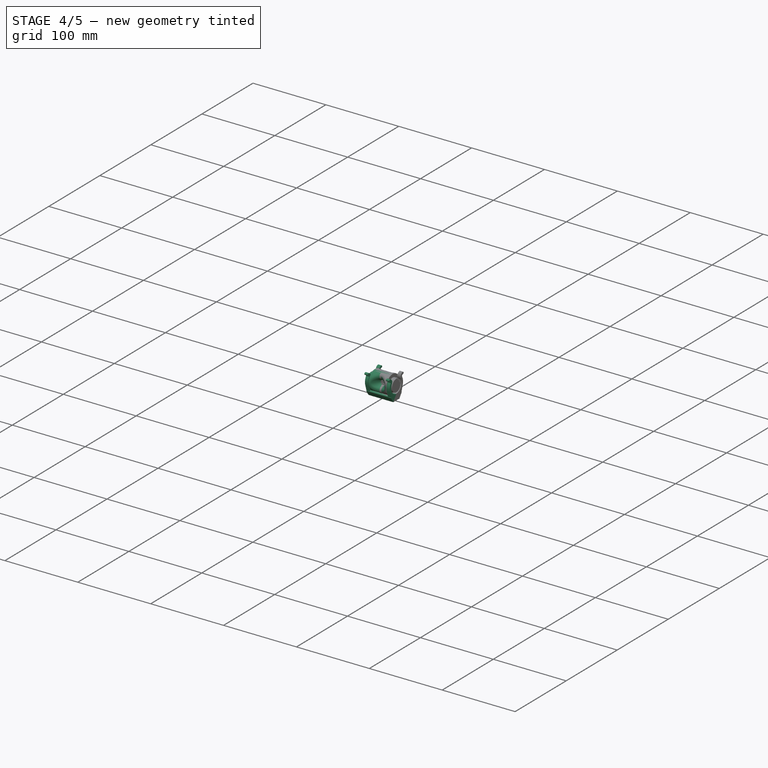
[diagram: stage 4 of 5 — iso view after this stage's code; geometry added in this stage tinted green]
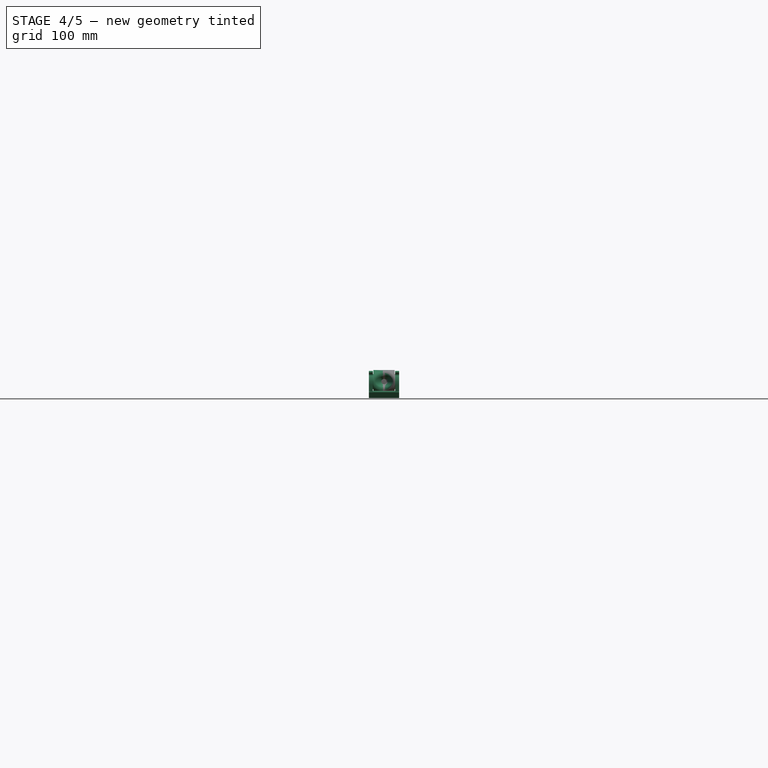
[diagram: stage 4 of 5 — front view after this stage's code; geometry added in this stage tinted green]
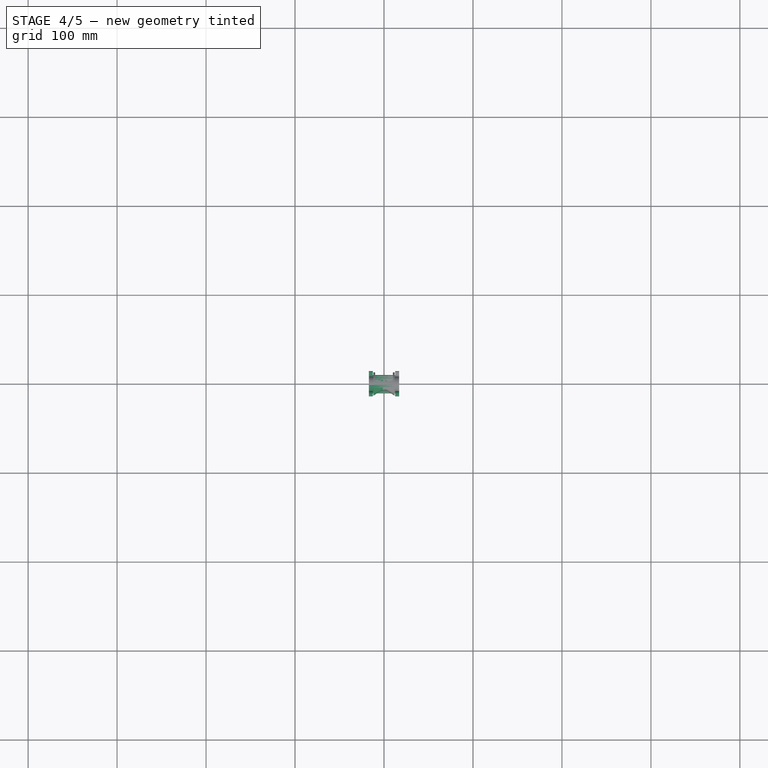
[diagram: stage 4 of 5 — top view after this stage's code; geometry added in this stage tinted green]
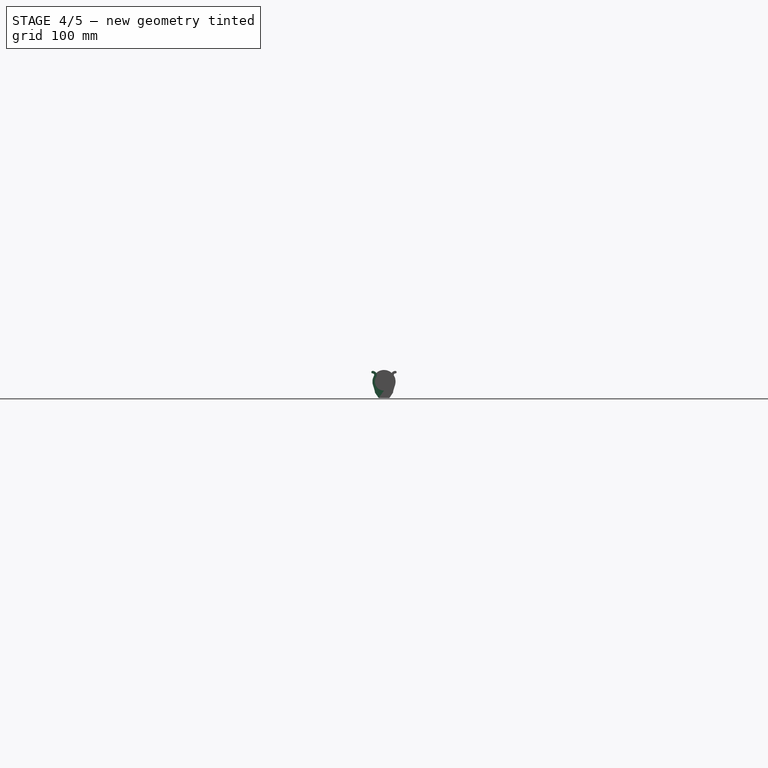
[diagram: stage 4 of 5 — right view after this stage's code; geometry added in this stage tinted green]
FEATURE [Sketcher::SketchObject] Sketch016
  ArcFitTolerance = 0
  AttachmentSupport = -> [XY_Plane011]
  ExternalTypes = [0]
  FullyConstrained = true
  MakeInternals = false
  MapMode = 5
  _ExternalGeoVersion = 0
  sketch-geometry (1):
    g0: Circle CenterX=0 CenterY=0 CenterZ=0 NormalX=0 NormalY=0 NormalZ=1 AngleXU=0 Radius=5
  constraints (2):
    c: Coincident(g0,g-1)
    c: Diameter(g0) = 10
FEATURE [PartDesign::Pocket] Pocket006
  BaseFeature = -> Pocket005
  Direction = (0,0,-1)
  Length = 16.5
  Length2 = 5
  Placement = pos=(0,0,0) rot=(1,1,1;2.0944rad)
  Profile = -> Sketch016
  ReferenceAxis = -> Sketch016 [N_Axis]
  SideType = 0
  Suppressed = false
  Type = 0
  Type2 = 0
FEATURE [PartDesign::MultiTransform] MultiTransform002
  BaseFeature = -> Pocket006
  Originals = -> [Pad005,Pad006,Pocket005,Pocket006]
  Placement = pos=(0,0,0) rot=(1,1,1;2.0944rad)
  Refine = true
  Suppressed = false
  TransformMode = 0
  Transformations = -> [Mirrored002,Mirrored003]
FEATURE [Sketcher::SketchObject] Sketch019
  ArcFitTolerance = 0
  AttachmentOffset = pos=(0,-2,0) rot=(0,0,1;0rad)
  AttachmentSupport = -> [XY_Plane007]
  ExternalTypes = [0]
  FullyConstrained = true
  MakeInternals = false
  MapMode = 5
  Placement = pos=(0,-2,0) rot=(0,0,1;0rad)
  _ExternalGeoVersion = 0
  sketch-geometry (4):
    g0: LineSegment StartX=-3 StartY=0 StartZ=0 EndX=-17.0042 EndY=-20 EndZ=0
    g1: LineSegment StartX=-17.0042 StartY=-20 StartZ=0 EndX=0 EndY=-20 EndZ=0
    g2: LineSegment StartX=0 StartY=-20 StartZ=0 EndX=0 EndY=0 EndZ=0
    g3: LineSegment StartX=-3 StartY=0 StartZ=0 EndX=0 EndY=0 EndZ=0
  constraints (11):
    c: PointOnObject(g0,g-1)
    c: Coincident(g1,g0)
    c: PointOnObject(g1,g-2)
    c: Coincident(g2,g1)
    c: Coincident(g2,g-1)
    c: Coincident(g3,g0)
    c: Coincident(g3,g2)
    c: DistanceX(g3,g3) = 3
    c: Horizontal(g1)
    c: Angle(g0,g2) = 0.610865
    c: DistanceY(g2,g2) = 20
FEATURE [Sketcher::SketchObject] Sketch020
  ArcFitTolerance = 0
  AttachmentOffset = pos=(0,0,-17) rot=(0,0,1;0rad)
  AttachmentSupport = -> [YZ_Plane007]
  ExternalTypes = [0]
  FullyConstrained = true
  MakeInternals = false
  MapMode = 5
  Placement = pos=(-17,0,0) rot=(0.57735,0.57735,0.57735;2.0944rad)
  _ExternalGeoVersion = 0
  expr: .AttachmentOffset.Base.z = -VarSet.largeur_base / 2
  sketch-geometry (6):
    g0: LineSegment [constr] StartX=0 StartY=0 StartZ=0 EndX=0 EndY=6.5 EndZ=0
    g1: LineSegment StartX=0.3 StartY=8.5 StartZ=0 EndX=0.3 EndY=6.5 EndZ=0
    g2: LineSegment StartX=0.3 StartY=6.5 StartZ=0 EndX=-0.3 EndY=6.5 EndZ=0
    g3: LineSegment StartX=-0.3 StartY=6.5 StartZ=0 EndX=-0.3 EndY=8.5 EndZ=0
    g4: ArcOfCircle CenterX=0 CenterY=0 CenterZ=0 NormalX=0 NormalY=0 NormalZ=1 AngleXU=0 Radius=8.50529 StartAngle=1.53552 EndAngle=1.60608
    g5: LineSegment [constr] StartX=0.3 StartY=8.5 StartZ=0 EndX=-0.3 EndY=8.5 EndZ=0
  constraints (16):
    c: Coincident(g0,g-1)
    c: Coincident(g1,g2)
    c: Coincident(g2,g3)
    c: Coincident(g4,g3)
    c: Coincident(g4,g1)
    c: Perpendicular(g0,g2)
    c: Symmetric(g1,g2,g0)
    c: Perpendicular(g2,g3)
    c: Parallel(g1,g3)
    c: Coincident(g5,g1)
    c: Coincident(g5,g3)
    c: Coincident(g4,g0)
    c: Distance(g2) = 0.6
    c: Distance(g1) = 2
    c: Distance(g0) = 6.5
    c: Vertical(g0)
FEATURE [Sketcher::SketchObject] Sketch022
  ArcFitTolerance = 0
  AttachmentOffset = pos=(0,0,17) rot=(0,0,1;0rad)
  AttachmentSupport = -> [YZ_Plane009]
  ExternalTypes = [0]
  FullyConstrained = true
  MakeInternals = false
  MapMode = 5
  Placement = pos=(17,0,0) rot=(0.57735,0.57735,0.57735;2.0944rad)
  _ExternalGeoVersion = 0
  expr: .AttachmentOffset.Base.z = VarSet.largeur_base / 2
  sketch-geometry (4):
    g0: LineSegment StartX=-0.3 StartY=6.5 StartZ=0 EndX=0.3 EndY=6.5 EndZ=0
    g1: LineSegment StartX=0.3 StartY=6.5 StartZ=0 EndX=0.3 EndY=8.5 EndZ=0
    g2: LineSegment StartX=0.3 StartY=8.5 StartZ=0 EndX=-0.3 EndY=8.5 EndZ=0
    g3: LineSegment StartX=-0.3 StartY=8.5 StartZ=0 EndX=-0.3 EndY=6.5 EndZ=0
  constraints (11):
    c: Coincident(g0,g1)
    c: Coincident(g1,g2)
    c: Coincident(g2,g3)
    c: Coincident(g3,g0)
    c: Horizontal(g2)
    c: Vertical(g1)
    c: Vertical(g3)
    c: Symmetric(g0,g0,g-2)
    c: DistanceY(g-1,g0) = 6.5
    c: DistanceY(g3,g3) = 2
    c: DistanceX(g2,g2) = 0.6
FEATURE [PartDesign::PolarPattern] PolarPattern001
  Angle = 180
  Axis = -> Sketch022 [N_Axis]
  Mode = 0
  Occurrences = 13
  Offset = 120
  Placement = pos=(0,0,0) rot=(1,0,0;1.5708rad)
  Reversed = true
  SpacingPattern = [0]
  Spacings = [-1,-1,-1,-1,-1,-1,-1,-1,-1,-1,-1,-1]
  Suppressed = false
  TransformMode = 0
FEATURE [Sketcher::SketchObject] Sketch023
  ArcFitTolerance = 0
  AttachmentOffset = pos=(0,0,29) rot=(0,0,1;0rad)
  AttachmentSupport = -> [YZ_Plane011]
  ExternalTypes = [0]
  FullyConstrained = true
  MakeInternals = false
  MapMode = 5
  Placement = pos=(29,0,0) rot=(0.57735,0.57735,0.57735;2.0944rad)
  _ExternalGeoVersion = 0
  sketch-geometry (4):
    g0: LineSegment StartX=-0.5 StartY=-20 StartZ=0 EndX=0.5 EndY=-20 EndZ=0
    g1: LineSegment StartX=0.5 StartY=-20 StartZ=0 EndX=0.5 EndY=-10 EndZ=0
    g2: LineSegment StartX=0.5 StartY=-10 StartZ=0 EndX=-0.5 EndY=-10 EndZ=0
    g3: LineSegment StartX=-0.5 StartY=-10 StartZ=0 EndX=-0.5 EndY=-20 EndZ=0
  constraints (11):
    c: Coincident(g0,g1)
    c: Coincident(g1,g2)
    c: Coincident(g2,g3)
    c: Coincident(g3,g0)
    c: Horizontal(g0)
    c: Vertical(g1)
    c: Vertical(g3)
    c: Symmetric(g1,g2,g-2)
    c: DistanceX(g2,g2) = 1
    c: DistanceY(g1,g-1) = 10
    c: DistanceY(g1,g1) = 10
FEATURE [PartDesign::Pocket] Pocket011
  BaseFeature = -> MultiTransform002
  Direction = (-1,0,0)
  Length = 0.2
  Length2 = 5
  Placement = pos=(0,0,0) rot=(1,1,1;2.0944rad)
  Profile = -> Sketch023
  ReferenceAxis = -> Sketch023 [N_Axis]
  SideType = 0
  Suppressed = false
  Type = 0
  Type2 = 0
FEATURE [PartDesign::MultiTransform] MultiTransform
  BaseFeature = -> Pad
  Originals = -> [Pad002,Pad003,Pocket001,Pocket002,Pocket004,Pad]
  Placement = pos=(0,0,0) rot=(1,1,1;2.0944rad)
  Refine = true
  Suppressed = false
  TransformMode = 0
  Transformations = -> [Mirrored]
FEATURE [PartDesign::Groove] Groove
  Angle = 360
  Angle2 = 60
  Axis = (0,1,0)
  Base = (0,-2,0)
  BaseFeature = -> MultiTransform
  Placement = pos=(0,0,0) rot=(1,1,1;2.0944rad)
  Profile = -> Sketch019
  ReferenceAxis = -> Sketch019 [V_Axis]
  Reversed = true
  Suppressed = false
  Type = 0
FEATURE [PartDesign::Fillet] Fillet004
  Base = -> Groove [Edge25]
  BaseFeature = -> Groove
  Placement = pos=(0,0,0) rot=(1,1,1;2.0944rad)
  Radius = 4
  SupportTransform = false
  Suppressed = false
  UseAllEdges = false
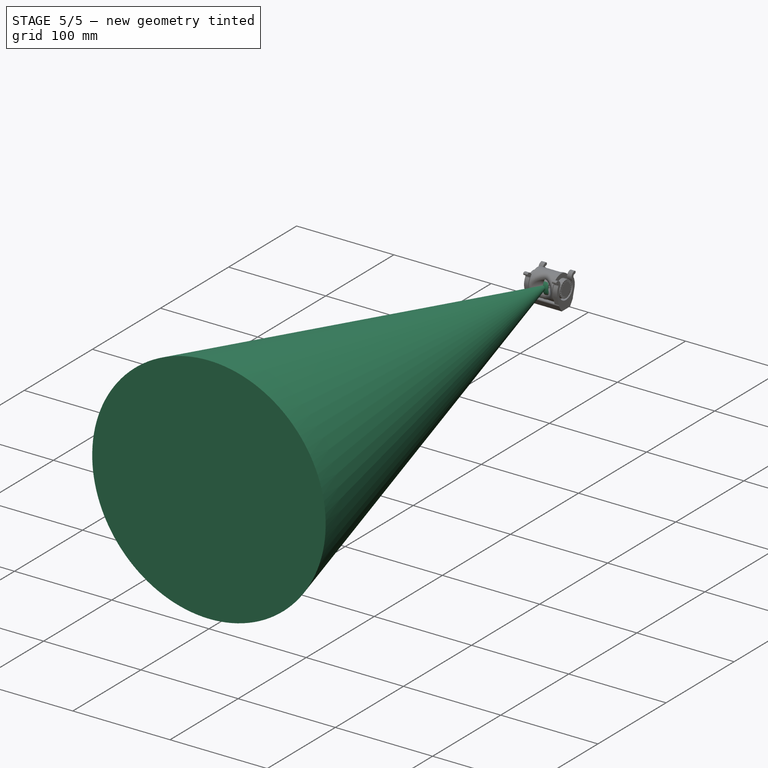
[diagram: stage 5 of 5 — iso view after this stage's code; geometry added in this stage tinted green]
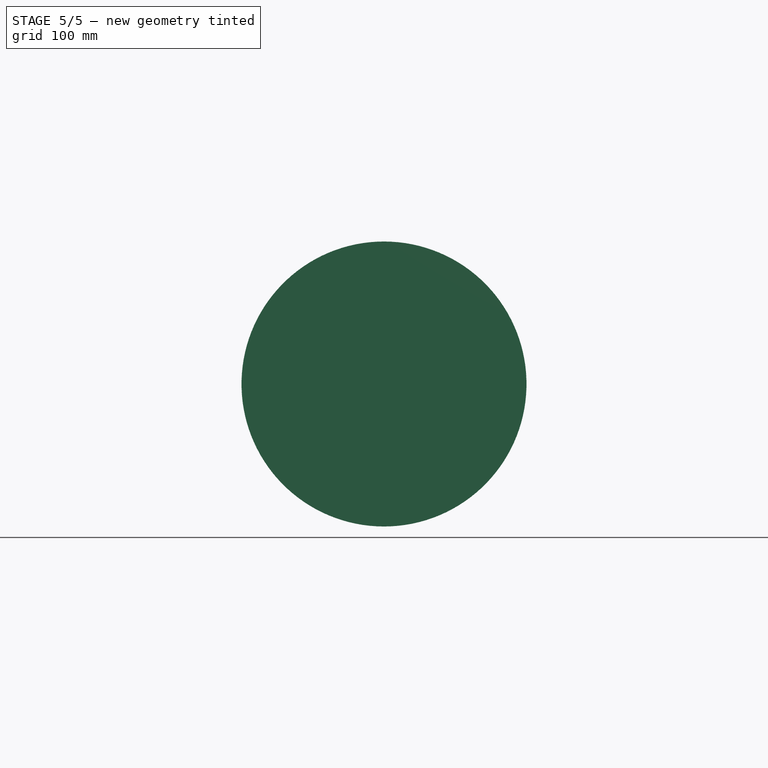
[diagram: stage 5 of 5 — front view after this stage's code; geometry added in this stage tinted green]
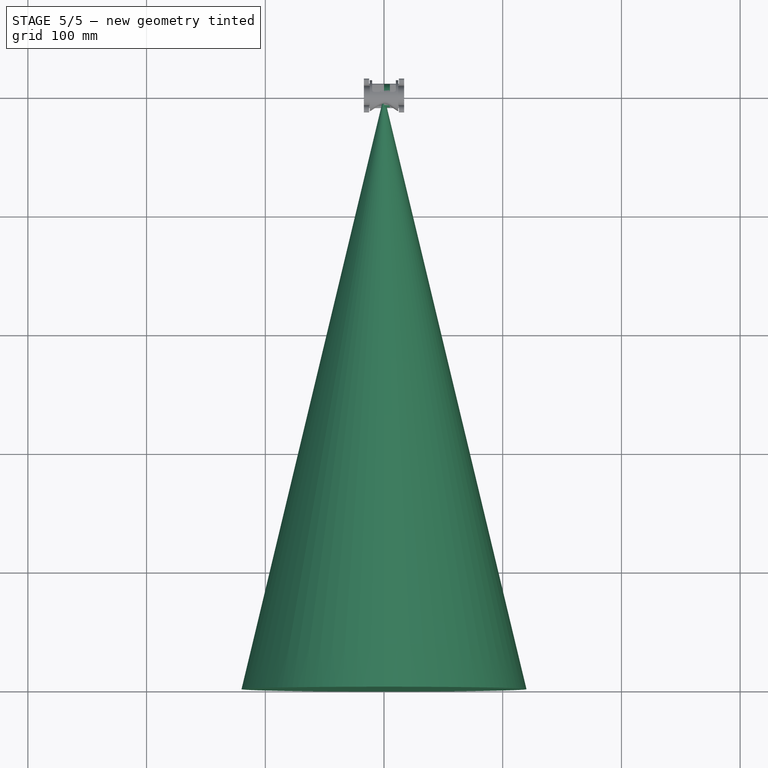
[diagram: stage 5 of 5 — top view after this stage's code; geometry added in this stage tinted green]
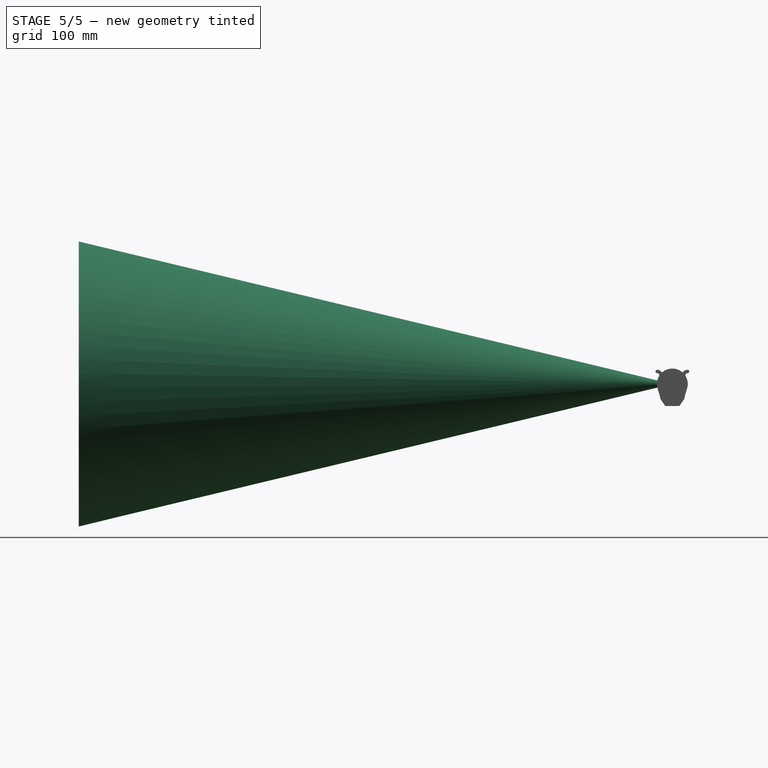
[diagram: stage 5 of 5 — right view after this stage's code; geometry added in this stage tinted green]
FEATURE [Part::Feature] Part__Feature  label="GY-VL53L1XV2"
  Placement = pos=(0,0,0) rot=(1,0,0;4.71239rad)
  shape: bbox 25 x 11.9 x 10.6 mm, 311 faces (baked)
FEATURE [Sketcher::SketchObject] Sketch
  ArcFitTolerance = 0
  AttachmentSupport = -> [YZ_Plane001]
  ExternalTypes = [0]
  FullyConstrained = true
  MakeInternals = false
  MapMode = 5
  Placement = pos=(0,0,0) rot=(0.57735,0.57735,0.57735;2.0944rad)
  _ExternalGeoVersion = 0
  sketch-geometry (3):
    g0: LineSegment StartX=0 StartY=0 StartZ=0 EndX=-500 EndY=120.039 EndZ=0
    g1: LineSegment StartX=-500 StartY=120.039 StartZ=0 EndX=-500 EndY=0 EndZ=0
    g2: LineSegment StartX=-500 StartY=0 StartZ=0 EndX=0 EndY=0 EndZ=0
  constraints (8):
    c: Coincident(g0,g-1)
    c: Coincident(g1,g0)
    c: PointOnObject(g1,g-1)
    c: Vertical(g1)
    c: Coincident(g2,g1)
    c: Coincident(g2,g0)
    c: Angle(g0,g2) = 0.235619
    c: DistanceX(g2,g2) = 500
FEATURE [PartDesign::Revolution] Revolution
  Angle = 360
  Angle2 = 60
  Axis = (0,1,0)
  Base = (0,0,0)
  FuseOrder = 1
  Placement = pos=(0,0,0) rot=(1,1,1;2.0944rad)
  Profile = -> Sketch
  ReferenceAxis = -> Sketch [H_Axis]
  Suppressed = false
  Type = 0
FEATURE [Sketcher::SketchObject] Sketch012
  ArcFitTolerance = 0
  AttachmentSupport = -> [YZ_Plane010]
  ExternalTypes = [0]
  FullyConstrained = true
  MakeInternals = false
  MapMode = 5
  Placement = pos=(0,0,0) rot=(0.57735,0.57735,0.57735;2.0944rad)
  _ExternalGeoVersion = 0
  sketch-geometry (2):
    g0: Circle CenterX=0 CenterY=0 CenterZ=0 NormalX=0 NormalY=0 NormalZ=1 AngleXU=0 Radius=8.7
    g1: Circle CenterX=0 CenterY=0 CenterZ=0 NormalX=0 NormalY=0 NormalZ=1 AngleXU=0 Radius=9.85
  constraints (4):
    c: Coincident(g0,g-1)
    c: Coincident(g1,g0)
    c: Diameter(g0) = 17.4
    c: Diameter(g1) = 19.7
FEATURE [PartDesign::Pad] Pad004
  Direction = (1,0,0)
  Length = 5
  Length2 = 10
  Placement = pos=(0,0,0) rot=(1,1,1;2.0944rad)
  Profile = -> Sketch012
  ReferenceAxis = -> Sketch012 [N_Axis]
  SideType = 0
  Suppressed = false
  Type = 0
  Type2 = 0
FEATURE [PartDesign::Fillet] Fillet001
  Base = -> Pad004 [Edge3]
  BaseFeature = -> Pad004
  Placement = pos=(0,0,0) rot=(1,1,1;2.0944rad)
  Radius = 0.5
  SupportTransform = false
  Suppressed = false
  UseAllEdges = false
FEATURE [PartDesign::Mirrored] Mirrored006
  BaseFeature = -> Pocket011
  MirrorPlane = -> YZ_Plane011
  Originals = -> [Pocket011]
  Placement = pos=(0,0,0) rot=(1,1,1;2.0944rad)
  Suppressed = false
  TransformMode = 0
FEATURE [PartDesign::Pocket] Pocket008
  BaseFeature = -> Fillet004
  Direction = (-1,0,0)
  Length = 0.3
  Length2 = 5
  Placement = pos=(0,0,0) rot=(1,1,1;2.0944rad)
  Profile = -> Sketch020
  ReferenceAxis = -> Sketch020 [N_Axis]
  Reversed = true
  SideType = 0
  Suppressed = false
  Type = 0
  Type2 = 0
FEATURE [PartDesign::MultiTransform] MultiTransform003
  BaseFeature = -> Pocket008
  Originals = -> [Pocket008]
  Placement = pos=(0,0,0) rot=(1,1,1;2.0944rad)
  Suppressed = false
  TransformMode = 0
  Transformations = -> [PolarPattern,Mirrored004]
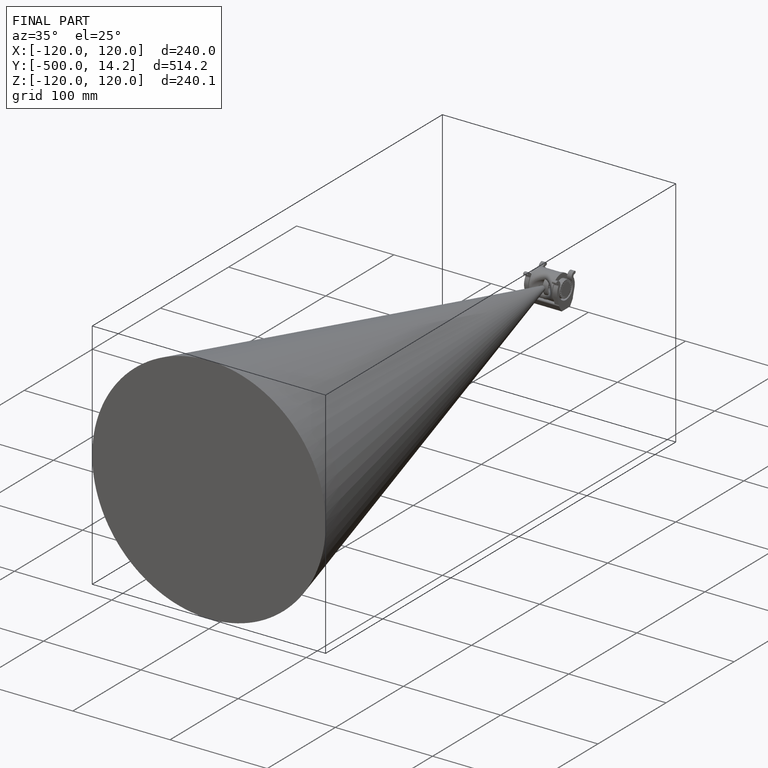
[diagram: finished part — iso view with bounding-box wireframe]
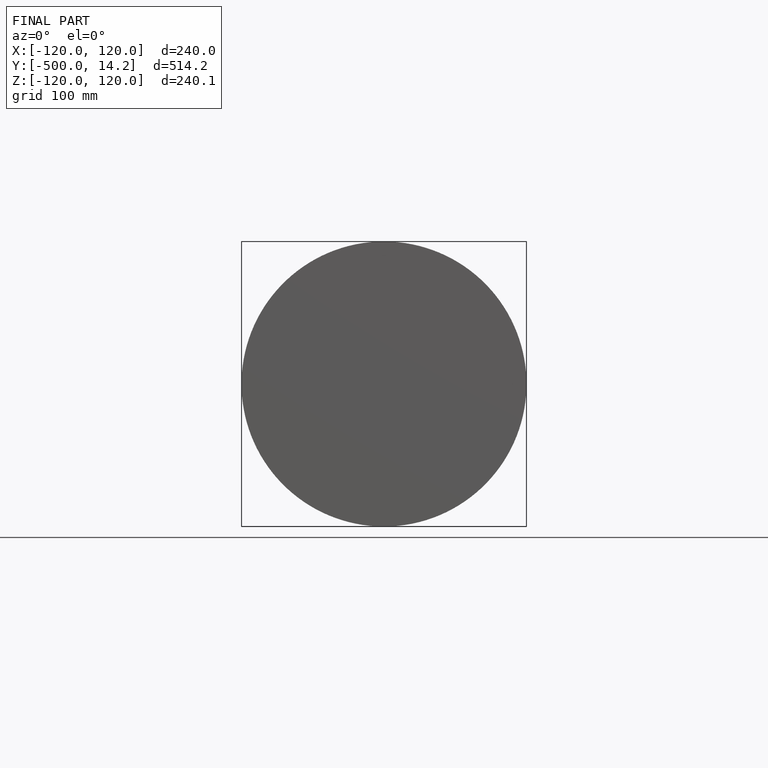
[diagram: finished part — front view with bounding-box wireframe]
